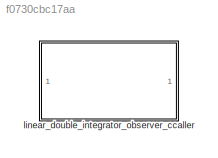
MODEL slx_f0730cbc17aa
KIND library
CONFIG AbsTol = auto
CONFIG EnableMultiTasking = off
CONFIG FixedStep = auto
CONFIG MaxStep = auto
CONFIG MinStep = auto
CONFIG RelTol = 1e-3
CONFIG SampleTimeConstraint = Unconstrained
CONFIG SolverName = VariableStepAuto
CONFIG StartTime = 0.0
CONFIG StopTime = 10.0
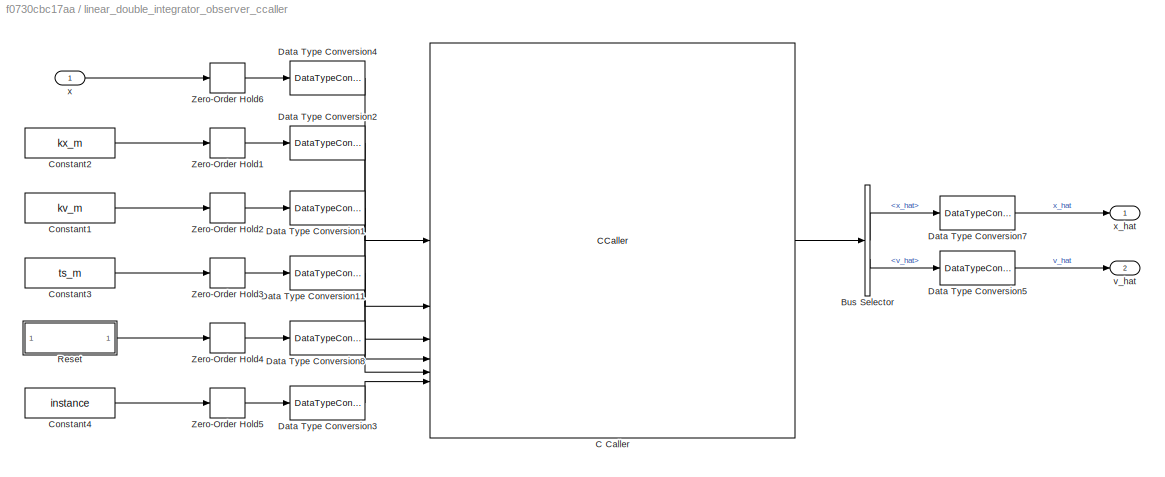
BLOCK [SubSystem] linear_double_integrator_observer_ccaller
BLOCK [BusSelector] linear_double_integrator_observer_ccaller/Bus Selector
  OutputSignals = x_hat,v_hat
BLOCK [CCaller] linear_double_integrator_observer_ccaller/C Caller
  FunctionName = linear_double_integrator_observer_process_simulink
  PortSpecificationStruct = %)30     .    , P   8    (     @         %    "     <    !     0         %  0 "0    $    _    07)G3F%M90  4&]R=$YA;64 4V-O<&4     26YD97@     5'EP90      4VEZ90      27-';&]B86P   X    P    !@    @    $          4    (     0    ,    !         !   P!O=70 #@   #     &    "     0         !0    @    !     P    $         $  # &]U=  .    .     8    (    !          %    "     $    &     0         0    !@...<+3773ch>
  SampleTime = tc_m
BLOCK [Constant] linear_double_integrator_observer_ccaller/Constant1
  Value = kv_m
BLOCK [Constant] linear_double_integrator_observer_ccaller/Constant2
  Value = kx_m
BLOCK [Constant] linear_double_integrator_observer_ccaller/Constant3
  Value = ts_m
BLOCK [Constant] linear_double_integrator_observer_ccaller/Constant4
  Value = instance
BLOCK [DataTypeConversion] linear_double_integrator_observer_ccaller/Data Type Conversion1
  OutDataTypeStr = single
  RndMeth = Floor
  SaturateOnIntegerOverflow = off
BLOCK [DataTypeConversion] linear_double_integrator_observer_ccaller/Data Type Conversion11
  OutDataTypeStr = single
  RndMeth = Floor
  SaturateOnIntegerOverflow = off
BLOCK [DataTypeConversion] linear_double_integrator_observer_ccaller/Data Type Conversion2
  OutDataTypeStr = single
  RndMeth = Floor
  SaturateOnIntegerOverflow = off
BLOCK [DataTypeConversion] linear_double_integrator_observer_ccaller/Data Type Conversion3
  OutDataTypeStr = uint8
  RndMeth = Floor
  SaturateOnIntegerOverflow = off
BLOCK [DataTypeConversion] linear_double_integrator_observer_ccaller/Data Type Conversion4
  OutDataTypeStr = single
  RndMeth = Floor
  SaturateOnIntegerOverflow = off
BLOCK [DataTypeConversion] linear_double_integrator_observer_ccaller/Data Type Conversion5
  OutDataTypeStr = double
  RndMeth = Floor
  SaturateOnIntegerOverflow = off
BLOCK [DataTypeConversion] linear_double_integrator_observer_ccaller/Data Type Conversion7
  OutDataTypeStr = double
  RndMeth = Floor
  SaturateOnIntegerOverflow = off
BLOCK [DataTypeConversion] linear_double_integrator_observer_ccaller/Data Type Conversion8
  OutDataTypeStr = uint8
  RndMeth = Floor
  SaturateOnIntegerOverflow = off
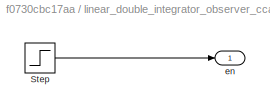
BLOCK [SubSystem] linear_double_integrator_observer_ccaller/Reset
BLOCK [Step] linear_double_integrator_observer_ccaller/Reset/Step
  After = 0
  Before = 1
  Time = time_release
BLOCK [Outport] linear_double_integrator_observer_ccaller/Reset/en
  IconDisplay = Signal name
BLOCK [ZeroOrderHold] linear_double_integrator_observer_ccaller/Zero-Order Hold1
  SampleTime = tc_m
BLOCK [ZeroOrderHold] linear_double_integrator_observer_ccaller/Zero-Order Hold2
  SampleTime = tc_m
BLOCK [ZeroOrderHold] linear_double_integrator_observer_ccaller/Zero-Order Hold3
  SampleTime = tc_m
BLOCK [ZeroOrderHold] linear_double_integrator_observer_ccaller/Zero-Order Hold4
  SampleTime = tc_m
BLOCK [ZeroOrderHold] linear_double_integrator_observer_ccaller/Zero-Order Hold5
  SampleTime = tc_m
BLOCK [ZeroOrderHold] linear_double_integrator_observer_ccaller/Zero-Order Hold6
  SampleTime = tc_m
BLOCK [Outport] linear_double_integrator_observer_ccaller/v_hat
  Port = 2
BLOCK [Inport] linear_double_integrator_observer_ccaller/x
BLOCK [Outport] linear_double_integrator_observer_ccaller/x_hat
LINE linear_double_integrator_observer_ccaller/Bus Selector:1 -> linear_double_integrator_observer_ccaller/Data Type Conversion7:1
LINE linear_double_integrator_observer_ccaller/Bus Selector:2 -> linear_double_integrator_observer_ccaller/Data Type Conversion5:1
LINE linear_double_integrator_observer_ccaller/C Caller:1 -> linear_double_integrator_observer_ccaller/Bus Selector:1
LINE linear_double_integrator_observer_ccaller/Constant1:1 -> linear_double_integrator_observer_ccaller/Zero-Order Hold2:1
LINE linear_double_integrator_observer_ccaller/Constant2:1 -> linear_double_integrator_observer_ccaller/Zero-Order Hold1:1
LINE linear_double_integrator_observer_ccaller/Constant3:1 -> linear_double_integrator_observer_ccaller/Zero-Order Hold3:1
LINE linear_double_integrator_observer_ccaller/Constant4:1 -> linear_double_integrator_observer_ccaller/Zero-Order Hold5:1
LINE linear_double_integrator_observer_ccaller/Data Type Conversion11:1 -> linear_double_integrator_observer_ccaller/C Caller:4
LINE linear_double_integrator_observer_ccaller/Data Type Conversion1:1 -> linear_double_integrator_observer_ccaller/C Caller:3
LINE linear_double_integrator_observer_ccaller/Data Type Conversion2:1 -> linear_double_integrator_observer_ccaller/C Caller:2
LINE linear_double_integrator_observer_ccaller/Data Type Conversion3:1 -> linear_double_integrator_observer_ccaller/C Caller:6
LINE linear_double_integrator_observer_ccaller/Data Type Conversion4:1 -> linear_double_integrator_observer_ccaller/C Caller:1
LINE linear_double_integrator_observer_ccaller/Data Type Conversion5:1 -> linear_double_integrator_observer_ccaller/v_hat:1
LINE linear_double_integrator_observer_ccaller/Data Type Conversion7:1 -> linear_double_integrator_observer_ccaller/x_hat:1
LINE linear_double_integrator_observer_ccaller/Data Type Conversion8:1 -> linear_double_integrator_observer_ccaller/C Caller:5
LINE linear_double_integrator_observer_ccaller/Reset/Step:1 -> linear_double_integrator_observer_ccaller/Reset/en:1
LINE linear_double_integrator_observer_ccaller/Reset:1 -> linear_double_integrator_observer_ccaller/Zero-Order Hold4:1
LINE linear_double_integrator_observer_ccaller/Zero-Order Hold1:1 -> linear_double_integrator_observer_ccaller/Data Type Conversion2:1
LINE linear_double_integrator_observer_ccaller/Zero-Order Hold2:1 -> linear_double_integrator_observer_ccaller/Data Type Conversion1:1
LINE linear_double_integrator_observer_ccaller/Zero-Order Hold3:1 -> linear_double_integrator_observer_ccaller/Data Type Conversion11:1
LINE linear_double_integrator_observer_ccaller/Zero-Order Hold4:1 -> linear_double_integrator_observer_ccaller/Data Type Conversion8:1
LINE linear_double_integrator_observer_ccaller/Zero-Order Hold5:1 -> linear_double_integrator_observer_ccaller/Data Type Conversion3:1
LINE linear_double_integrator_observer_ccaller/Zero-Order Hold6:1 -> linear_double_integrator_observer_ccaller/Data Type Conversion4:1
LINE linear_double_integrator_observer_ccaller/x:1 -> linear_double_integrator_observer_ccaller/Zero-Order Hold6:1
